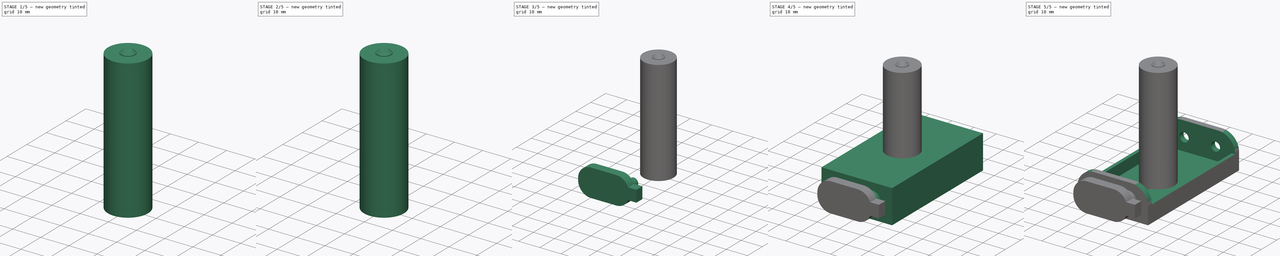
[diagram: build sequence overview — one tinted view per stage of 5, left to right]
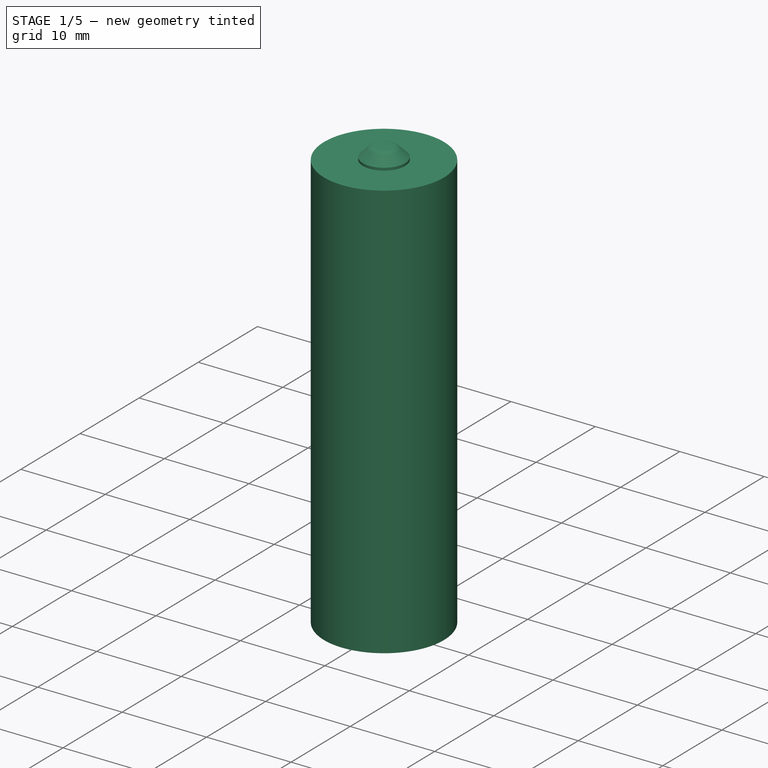
[diagram: stage 1 of 5 — iso view after this stage's code; geometry added in this stage tinted green]
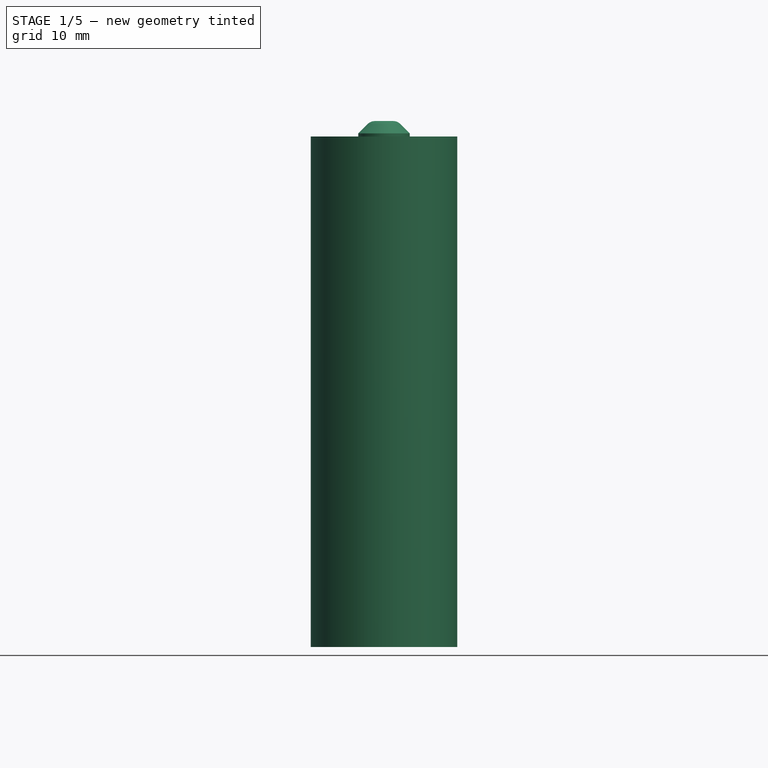
[diagram: stage 1 of 5 — front view after this stage's code; geometry added in this stage tinted green]
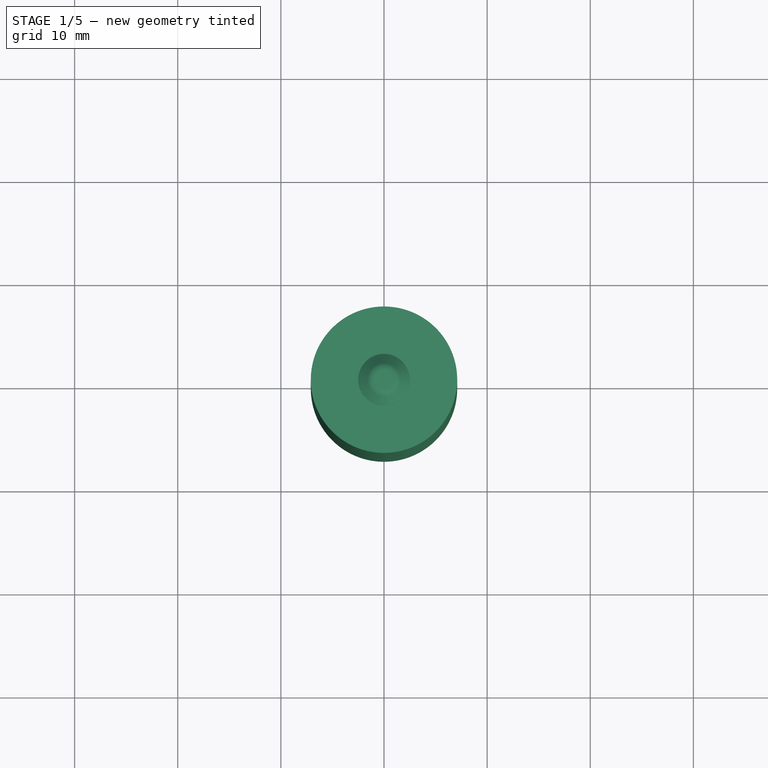
[diagram: stage 1 of 5 — top view after this stage's code; geometry added in this stage tinted green]
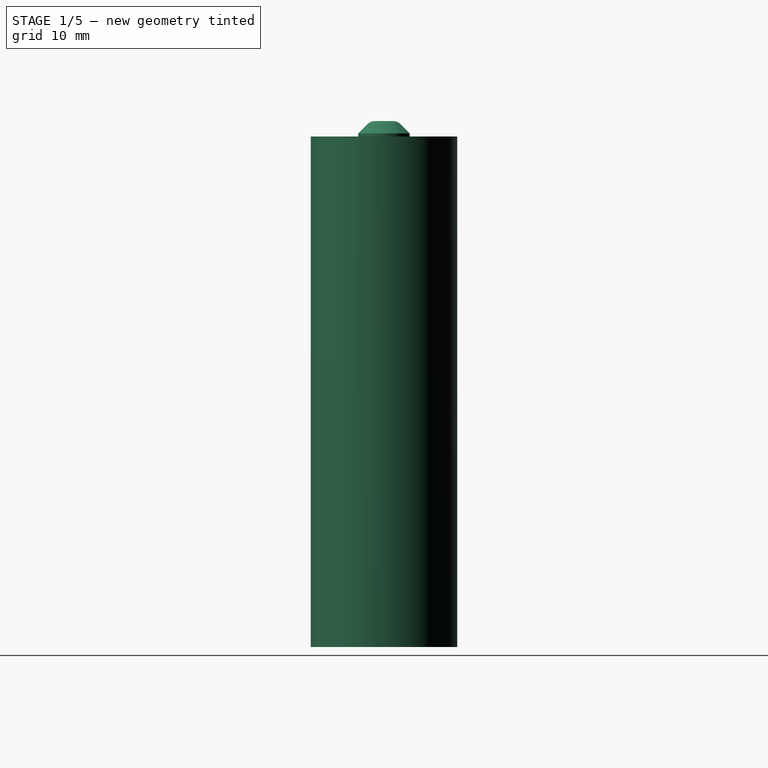
[diagram: stage 1 of 5 — right view after this stage's code; geometry added in this stage tinted green]
FCSTD DOCUMENT  (FreeCAD 0.19R24276 (Git))
Label: Std_2xAABatHolder
License: All rights reserved
LicenseURL: http://en.wikipedia.org/wiki/All_rights_reserved
objects: Sketcher::SketchObject×17, PartDesign::Pad×13, PartDesign::Body×8, PartDesign::Fillet×4, PartDesign::Pocket×4, PartDesign::Plane×4, App::Part×3, PartDesign::Chamfer×2
note: 75 computed .brp shape members not serialized (recipe doc carries the construction recipe); baked Part::Feature solids carry a one-line shape summary decoded from their .brp

FEATURE [PartDesign::Body] Body004  label="MainBody"
  Group = -> [Sketch012,Pad007,Sketch011,Pad008,Chamfer,Fillet002]
  Origin = -> Origin006
  Tip = -> Fillet002
FEATURE [App::Part] Part001  label="LiPo14500 1"
  Group = -> [Body004,Body005]
  Origin = -> Origin005
  Placement = pos=(-7.5,25,8) rot=(1,0,0;1.5708rad)
FEATURE [Sketcher::SketchObject] Sketch015
  FullyConstrained = true
  MapMode = 5
  Support = -> [XY_Plane009]
  sketch-geometry (2):
    g0: Circle CenterX=0 CenterY=0 CenterZ=0 NormalX=0 NormalY=0 NormalZ=1 AngleXU=0 Radius=7
    g1: Circle CenterX=0 CenterY=0 CenterZ=0 NormalX=0 NormalY=0 NormalZ=1 AngleXU=0 Radius=7.1
  constraints (4):
    c: Coincident(g0,g-1)
    c: Coincident(g1,g0)
    c: Diameter(g1) = 14.2
    c: Diameter(g0) = 14
FEATURE [PartDesign::Pad] Pad010
  Direction = (1,1,1)
  Length = 49.5
  Length2 = 100
  Profile = -> Sketch015
  Type = 0
FEATURE [Sketcher::SketchObject] Sketch016
  FullyConstrained = true
  MapMode = 5
  Support = -> [XY_Plane008]
  sketch-geometry (1):
    g0: Circle CenterX=0 CenterY=0 CenterZ=0 NormalX=0 NormalY=0 NormalZ=1 AngleXU=0 Radius=7
  constraints (2):
    c: Coincident(g0,g-1)
    c: Diameter(g0) = 14
FEATURE [PartDesign::Pad] Pad011
  Direction = (1,1,1)
  Length = 49.5
  Length2 = 100
  Profile = -> Sketch016
  Type = 0
FEATURE [Sketcher::SketchObject] Sketch014
  FullyConstrained = true
  MapMode = 5
  Placement = pos=(0,0,49.5) rot=(0,0,1;0rad)
  Support = -> [Pad011]
  sketch-geometry (1):
    g0: Circle CenterX=0 CenterY=0 CenterZ=0 NormalX=0 NormalY=0 NormalZ=1 AngleXU=0 Radius=2.5
  constraints (2):
    c: Coincident(g0,g-1)
    c: Diameter(g0) = 5
FEATURE [PartDesign::Pad] Pad012
  BaseFeature = -> Pad011
  Direction = (1,1,1)
  Length = 1.5
  Length2 = 100
  Profile = -> Sketch014
  Type = 0
FEATURE [PartDesign::Chamfer] Chamfer001
  Angle = 45
  Base = -> Pad012 [Edge6]
  BaseFeature = -> Pad012
  ChamferType = 0
  FlipDirection = false
  Size = 1.2
  Size2 = 1
  SupportTransform = false
FEATURE [PartDesign::Body] Body007  label="Case002"
  Group = -> [Sketch015,Pad010]
  Origin = -> Origin010
  Tip = -> Pad010
FEATURE [PartDesign::Fillet] Fillet003
  Base = -> Chamfer001 [Edge5]
  BaseFeature = -> Chamfer001
  Radius = 1
  SupportTransform = false
FEATURE [PartDesign::Body] Body006  label="MainBody001"
  Group = -> [Sketch016,Pad011,Sketch014,Pad012,Chamfer001,Fillet003]
  Origin = -> Origin008
  Tip = -> Fillet003
FEATURE [App::Part] Part002  label="LiPo14500 2"
  Group = -> [Body006,Body007]
  Origin = -> Origin009
  Placement = pos=(7.5,-25,8) rot=(1,0,0;4.71239rad)
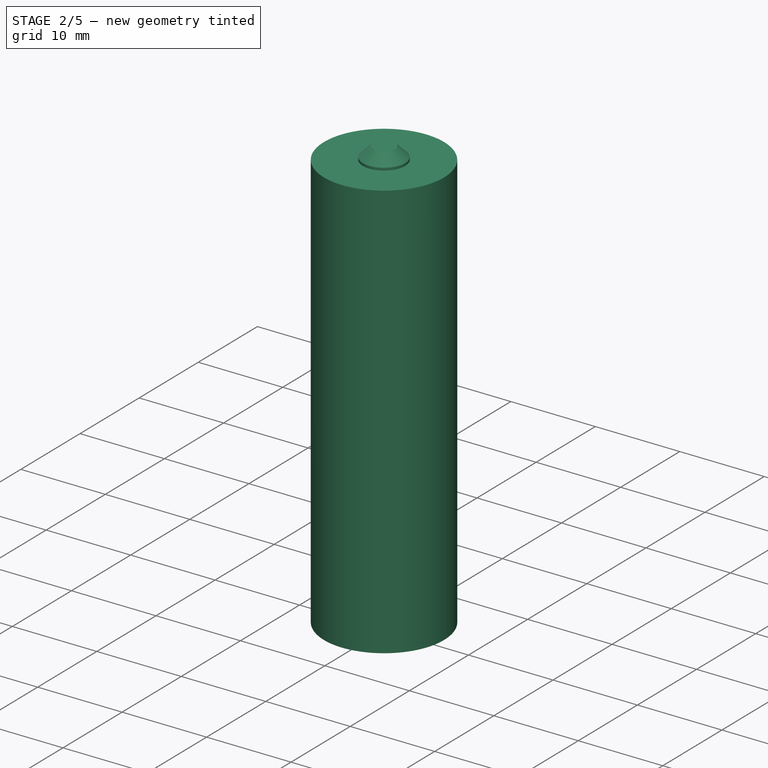
[diagram: stage 2 of 5 — iso view after this stage's code; geometry added in this stage tinted green]
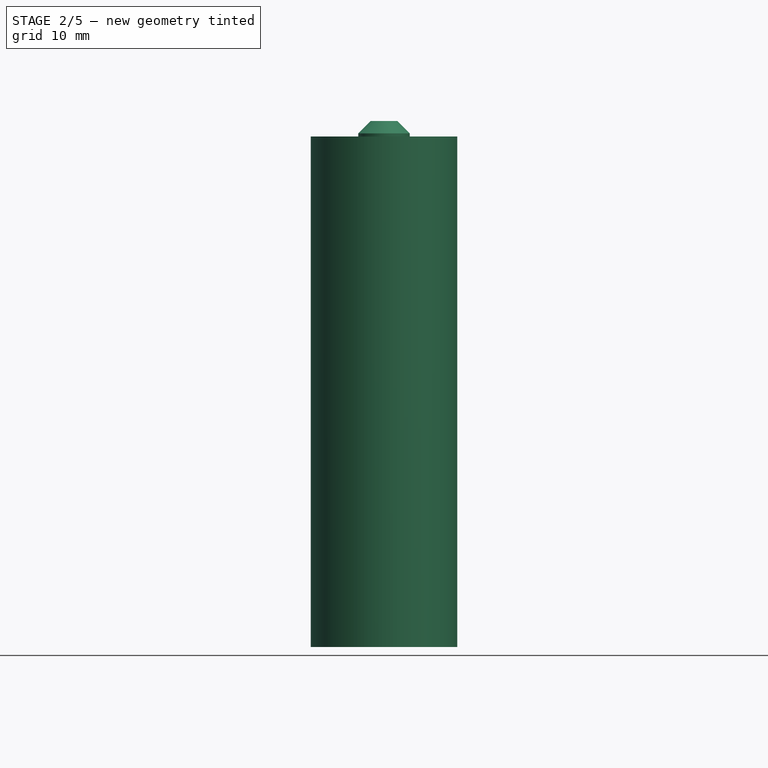
[diagram: stage 2 of 5 — front view after this stage's code; geometry added in this stage tinted green]
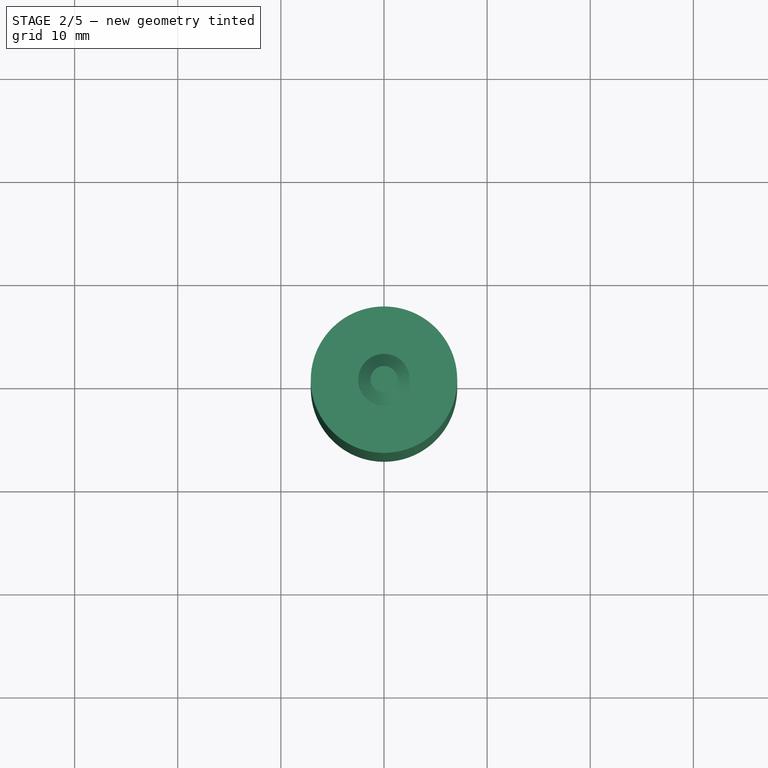
[diagram: stage 2 of 5 — top view after this stage's code; geometry added in this stage tinted green]
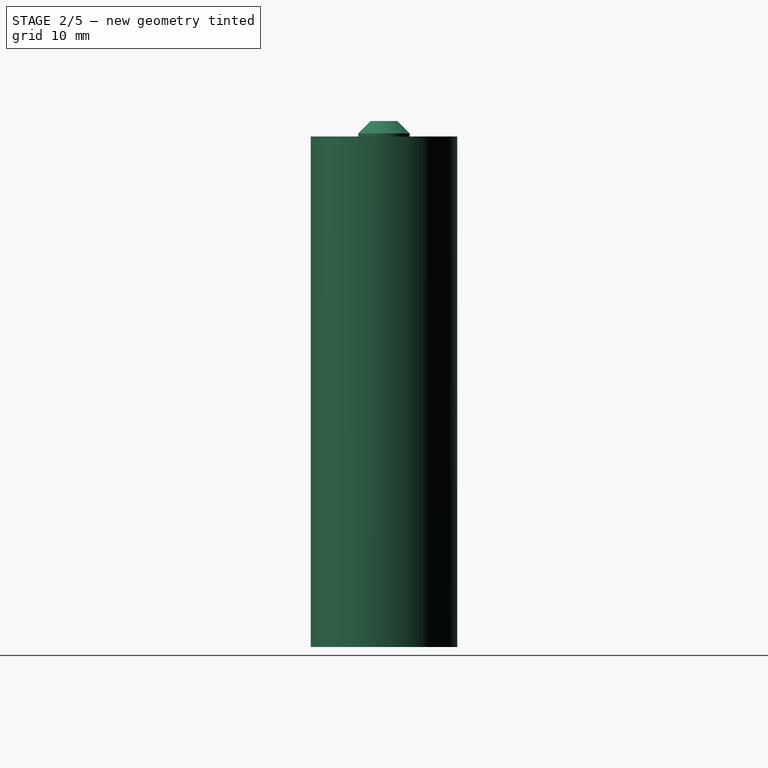
[diagram: stage 2 of 5 — right view after this stage's code; geometry added in this stage tinted green]
FEATURE [PartDesign::Body] Body003  label="WireConnector9V"
  Group = -> [DatumPlane003,Sketch009,Pad005,Fillet001,Sketch010,Pad006]
  Origin = -> Origin004
  Tip = -> Pad006
FEATURE [App::Part] Part  label="AABatHolder"
  Group = -> [Body,Body001,Body002,Body003]
  Origin = -> Origin
FEATURE [Sketcher::SketchObject] Sketch012
  FullyConstrained = true
  MapMode = 5
  Support = -> [XY_Plane006]
  sketch-geometry (1):
    g0: Circle CenterX=0 CenterY=0 CenterZ=0 NormalX=0 NormalY=0 NormalZ=1 AngleXU=0 Radius=7
  constraints (2):
    c: Coincident(g0,g-1)
    c: Diameter(g0) = 14
FEATURE [PartDesign::Pad] Pad007
  Direction = (1,1,1)
  Length = 49.5
  Length2 = 100
  Profile = -> Sketch012
  Type = 0
FEATURE [Sketcher::SketchObject] Sketch011
  FullyConstrained = true
  MapMode = 5
  Placement = pos=(0,0,49.5) rot=(0,0,1;0rad)
  Support = -> [Pad007]
  sketch-geometry (1):
    g0: Circle CenterX=0 CenterY=0 CenterZ=0 NormalX=0 NormalY=0 NormalZ=1 AngleXU=0 Radius=2.5
  constraints (2):
    c: Coincident(g0,g-1)
    c: Diameter(g0) = 5
FEATURE [PartDesign::Pad] Pad008
  BaseFeature = -> Pad007
  Direction = (1,1,1)
  Length = 1.5
  Length2 = 100
  Profile = -> Sketch011
  Type = 0
FEATURE [Sketcher::SketchObject] Sketch013
  FullyConstrained = true
  MapMode = 5
  Support = -> [XY_Plane007]
  sketch-geometry (2):
    g0: Circle CenterX=0 CenterY=0 CenterZ=0 NormalX=0 NormalY=0 NormalZ=1 AngleXU=0 Radius=7
    g1: Circle CenterX=0 CenterY=0 CenterZ=0 NormalX=0 NormalY=0 NormalZ=1 AngleXU=0 Radius=7.1
  constraints (4):
    c: Coincident(g0,g-1)
    c: Coincident(g1,g0)
    c: Diameter(g1) = 14.2
    c: Diameter(g0) = 14
FEATURE [PartDesign::Pad] Pad009
  Direction = (1,1,1)
  Length = 49.5
  Length2 = 100
  Profile = -> Sketch013
  Type = 0
FEATURE [PartDesign::Body] Body005  label="Case001"
  Group = -> [Sketch013,Pad009]
  Origin = -> Origin007
  Tip = -> Pad009
FEATURE [PartDesign::Chamfer] Chamfer
  Angle = 45
  Base = -> Pad008 [Edge6]
  BaseFeature = -> Pad008
  ChamferType = 0
  FlipDirection = false
  Size = 1.2
  Size2 = 1
  SupportTransform = false
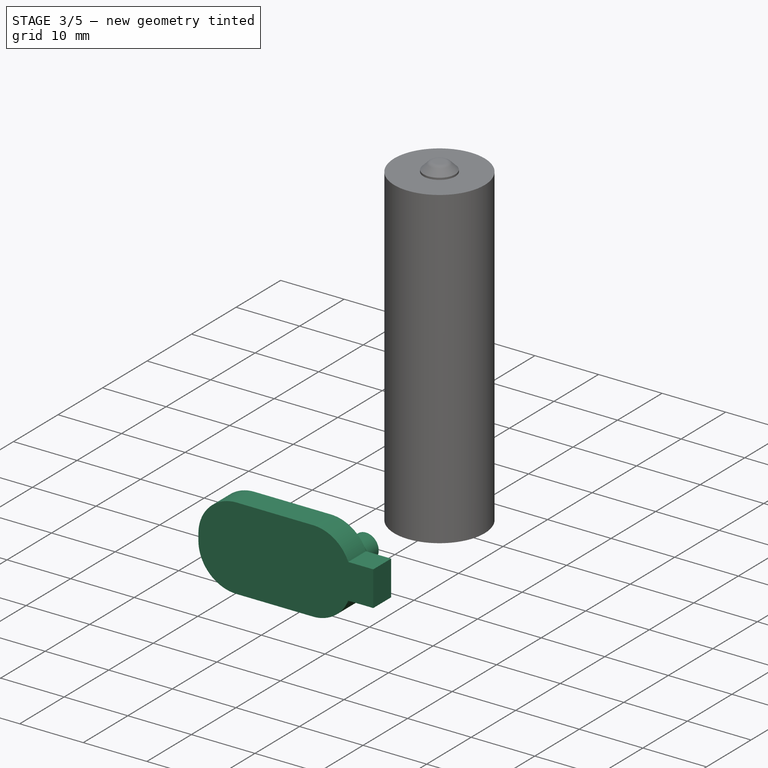
[diagram: stage 3 of 5 — iso view after this stage's code; geometry added in this stage tinted green]
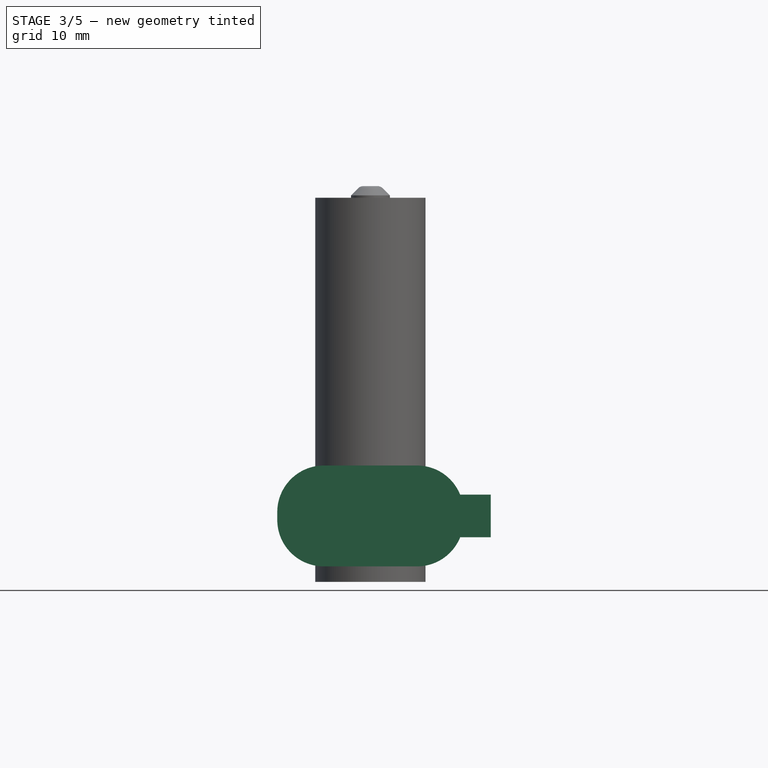
[diagram: stage 3 of 5 — front view after this stage's code; geometry added in this stage tinted green]
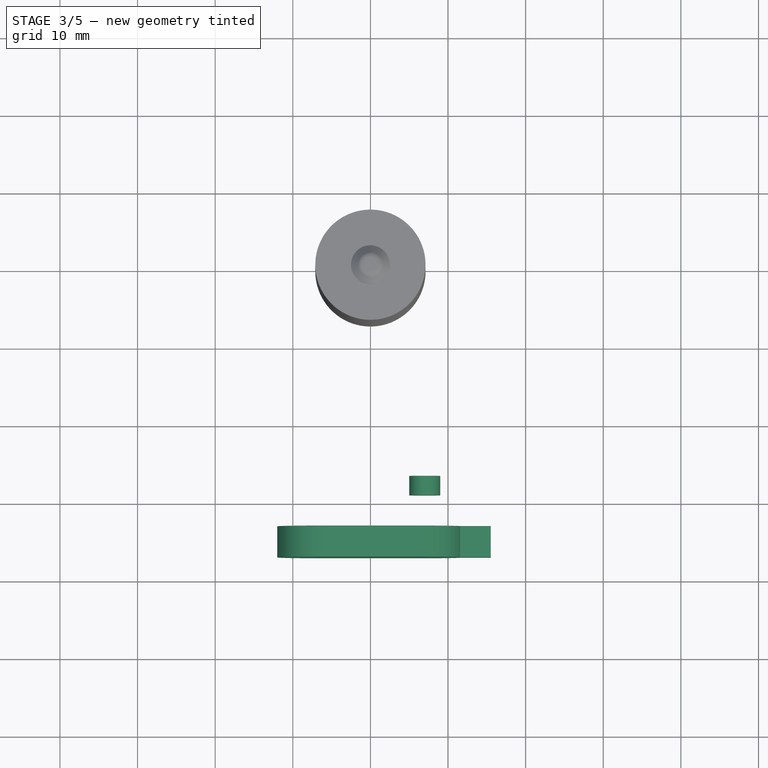
[diagram: stage 3 of 5 — top view after this stage's code; geometry added in this stage tinted green]
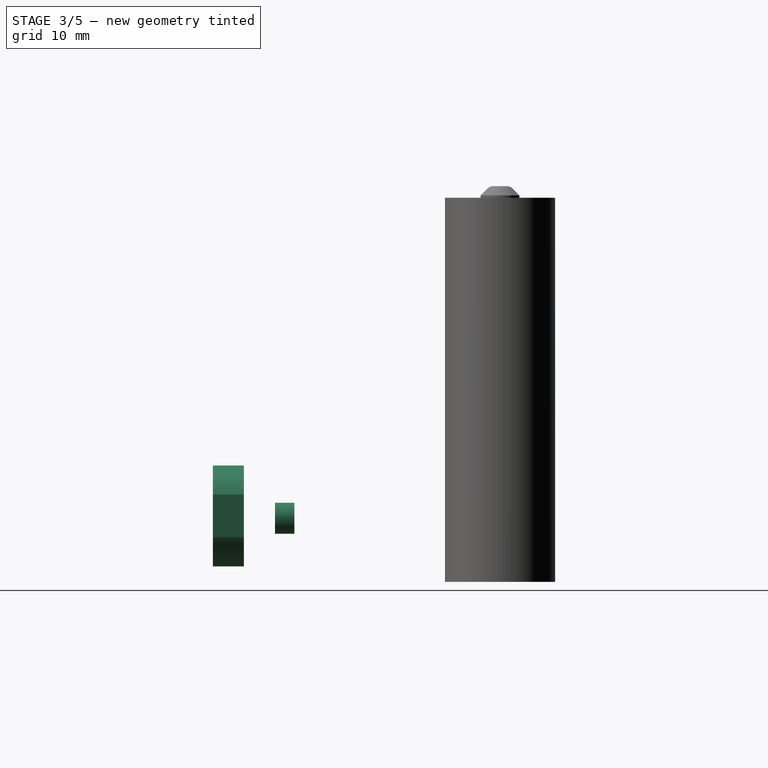
[diagram: stage 3 of 5 — right view after this stage's code; geometry added in this stage tinted green]
FEATURE [PartDesign::Body] Body001  label="Connector9V_1"
  Group = -> [DatumPlane001,Sketch005,Pad001,Sketch006,Pad002]
  Origin = -> Origin002
  Tip = -> Pad002
FEATURE [PartDesign::Plane] DatumPlane002
  AttachmentOffset = pos=(0,0,29) rot=(0,0,1;0rad)
  Length = 60
  MapMode = 5
  Placement = pos=(0,-29,-6.4e-15) rot=(1,0,0;1.5708rad)
  ResizeMode = 0
  Support = -> [XZ_Plane003]
  Width = 60
FEATURE [Sketcher::SketchObject] Sketch007
  FullyConstrained = true
  MapMode = 5
  Placement = pos=(0,-29,-6.4e-15) rot=(1,0,0;1.5708rad)
  Support = -> [DatumPlane002]
  sketch-geometry (3):
    g0: LineSegment StartX=0 StartY=0 StartZ=0 EndX=0 EndY=8.2 EndZ=0
    g1: LineSegment StartX=-7 StartY=8.2 StartZ=0 EndX=7 EndY=8.2 EndZ=0
    g2: Circle CenterX=7 CenterY=8.2 CenterZ=0 NormalX=0 NormalY=0 NormalZ=1 AngleXU=0 Radius=2
  constraints (8):
    c: Coincident(g0,g-1)
    c: PointOnObject(g0,g-2)
    c: Horizontal(g1)
    c: Symmetric(g1,g1,g0)
    c: Distance(g0) = 8.2
    c: Distance(g1) = 14
    c: Coincident(g2,g1)
    c: Diameter(g2) = 4
FEATURE [PartDesign::Pad] Pad003
  Direction = (1,1,1)
  Length = 2.5
  Length2 = 100
  Placement = pos=(0,-29,6e-15) rot=(1,0,0;1.5708rad)
  Profile = -> Sketch007
  Reversed = true
  Type = 0
FEATURE [PartDesign::Body] Body002  label="Connector9V_2"
  Group = -> [DatumPlane002,Sketch007,Pad003,Sketch008,Pad004]
  Origin = -> Origin003
  Tip = -> Pad004
FEATURE [PartDesign::Plane] DatumPlane003
  AttachmentOffset = pos=(0,0,33) rot=(0,0,1;0rad)
  Length = 60
  MapMode = 5
  Placement = pos=(0,-33,-7.3e-15) rot=(1,0,0;1.5708rad)
  ResizeMode = 0
  Support = -> [XZ_Plane004]
  Width = 60
FEATURE [Sketcher::SketchObject] Sketch009
  FullyConstrained = true
  MapMode = 5
  Placement = pos=(0,-33,-7.3e-15) rot=(1,0,0;1.5708rad)
  Support = -> [DatumPlane003]
  sketch-geometry (5):
    g0: LineSegment StartX=-12 StartY=15 StartZ=0 EndX=12 EndY=15 EndZ=0
    g1: LineSegment StartX=12 StartY=15 StartZ=0 EndX=12 EndY=2 EndZ=0
    g2: LineSegment StartX=12 StartY=2 StartZ=0 EndX=-12 EndY=2 EndZ=0
    g3: LineSegment StartX=-12 StartY=2 StartZ=0 EndX=-12 EndY=15 EndZ=0
    g4: LineSegment StartX=0 StartY=0 StartZ=0 EndX=0 EndY=2 EndZ=0
  constraints (14):
    c: Coincident(g0,g1)
    c: Coincident(g1,g2)
    c: Coincident(g2,g3)
    c: Coincident(g3,g0)
    c: Horizontal(g0)
    c: Horizontal(g2)
    c: Vertical(g1)
    c: Vertical(g3)
    c: Coincident(g4,g-1)
    c: PointOnObject(g4,g-2)
    c: Symmetric(g2,g1,g4)
    c: Distance(g0) = 24
    c: Distance(g3) = 13
    c: Distance(g4) = 2
FEATURE [PartDesign::Pad] Pad005
  Direction = (1,1,1)
  Length = 4
  Length2 = 100
  Placement = pos=(0,-33,7e-15) rot=(1,0,0;1.5708rad)
  Profile = -> Sketch009
  Type = 0
FEATURE [PartDesign::Fillet] Fillet001
  Base = -> Pad005 [Edge1,Edge2,Edge8,Edge5]
  BaseFeature = -> Pad005
  Placement = pos=(0,-33,7e-15) rot=(1,0,0;1.5708rad)
  Radius = 6
  SupportTransform = false
FEATURE [Sketcher::SketchObject] Sketch010
  FullyConstrained = true
  MapMode = 5
  Placement = pos=(0,-33,-7.3e-15) rot=(1,0,0;1.5708rad)
  Support = -> [DatumPlane003]
  sketch-geometry (5):
    g0: LineSegment StartX=10 StartY=11.25 StartZ=0 EndX=15.5 EndY=11.25 EndZ=0
    g1: LineSegment StartX=15.5 StartY=11.25 StartZ=0 EndX=15.5 EndY=5.75 EndZ=0
    g2: LineSegment StartX=15.5 StartY=5.75 StartZ=0 EndX=10 EndY=5.75 EndZ=0
    g3: LineSegment StartX=10 StartY=5.75 StartZ=0 EndX=10 EndY=11.25 EndZ=0
    g4: LineSegment StartX=0 StartY=8.5 StartZ=0 EndX=10 EndY=8.5 EndZ=0
  constraints (15):
    c: Coincident(g0,g1)
    c: Coincident(g1,g2)
    c: Coincident(g2,g3)
    c: Coincident(g3,g0)
    c: Horizontal(g0)
    c: Horizontal(g2)
    c: Vertical(g1)
    c: Vertical(g3)
    c: Distance(g1) = 5.5
    c: Distance(g0) = 5.5
    c: DistanceX(g-1,g1) = 15.5
    c: PointOnObject(g4,g-2)
    c: Horizontal(g4)
    c: Symmetric(g0,g2,g4)
    c: DistanceY(g-1,g4) = 8.5
FEATURE [PartDesign::Pad] Pad006
  BaseFeature = -> Fillet001
  Direction = (1,1,1)
  Length = 4
  Length2 = 100
  Placement = pos=(0,-33,7e-15) rot=(1,0,0;1.5708rad)
  Profile = -> Sketch010
  Type = 0
FEATURE [PartDesign::Fillet] Fillet002
  Base = -> Chamfer [Edge5]
  BaseFeature = -> Chamfer
  Radius = 1
  SupportTransform = false
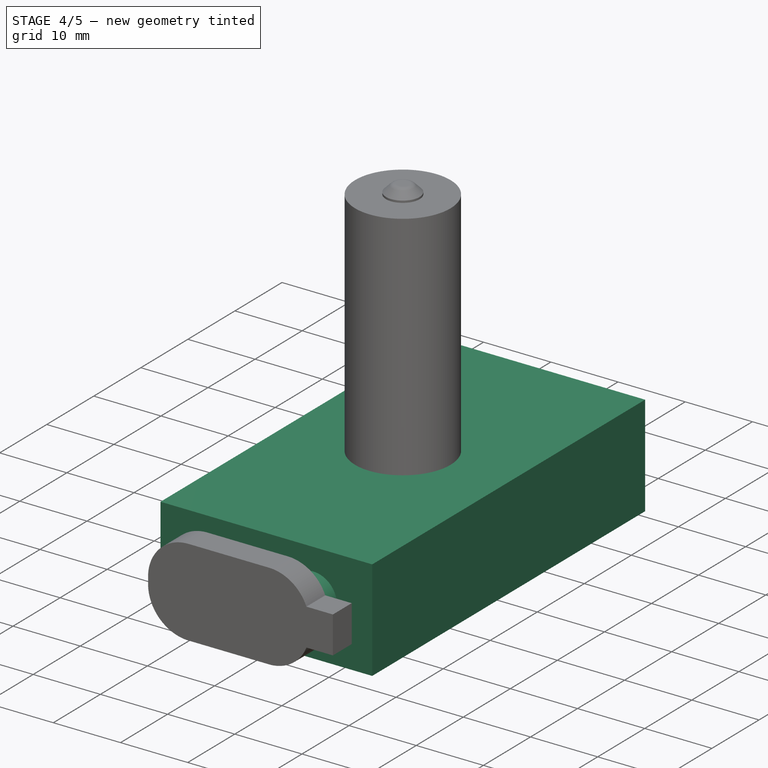
[diagram: stage 4 of 5 — iso view after this stage's code; geometry added in this stage tinted green]
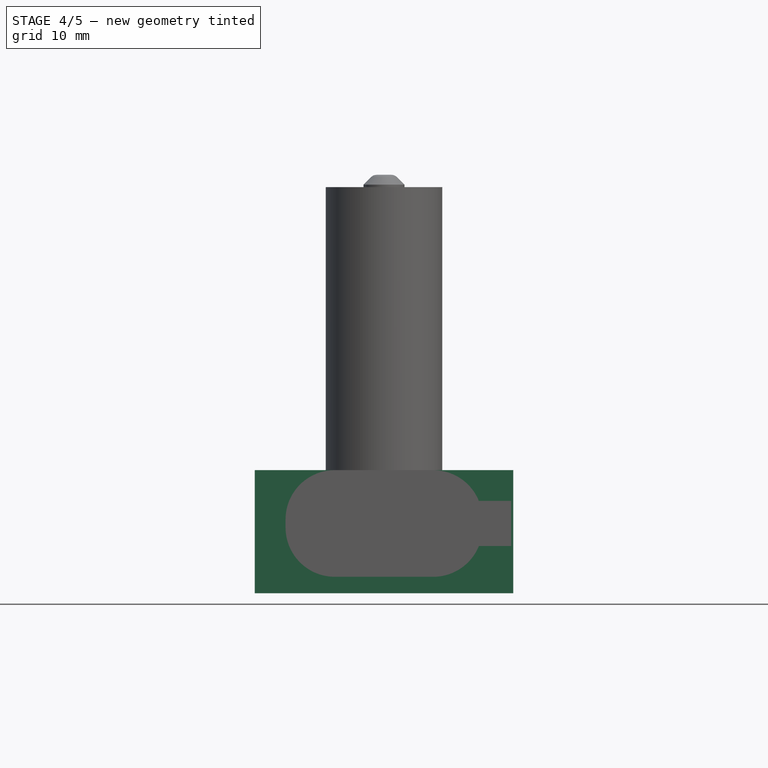
[diagram: stage 4 of 5 — front view after this stage's code; geometry added in this stage tinted green]
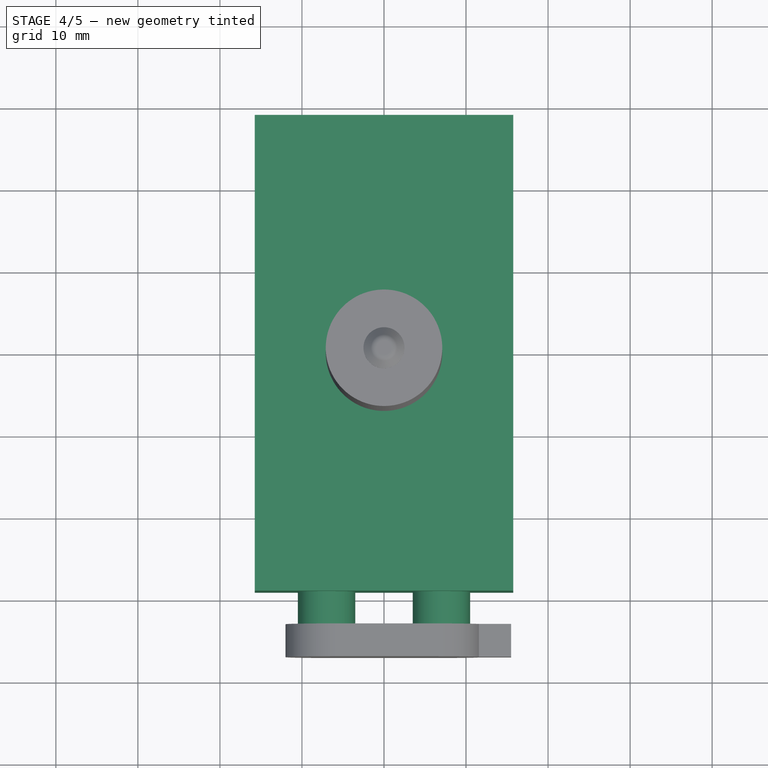
[diagram: stage 4 of 5 — top view after this stage's code; geometry added in this stage tinted green]
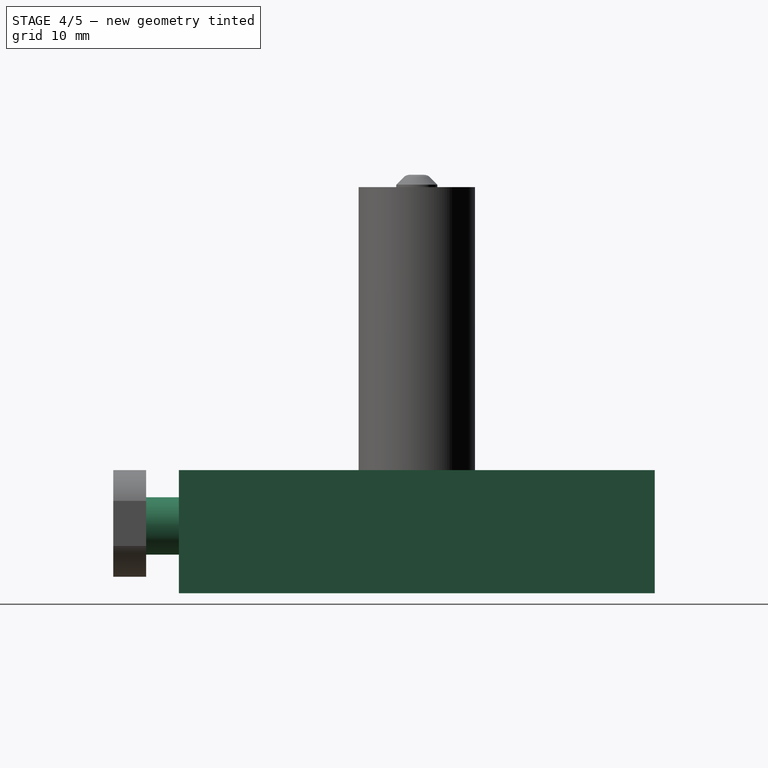
[diagram: stage 4 of 5 — right view after this stage's code; geometry added in this stage tinted green]
FEATURE [Sketcher::SketchObject] Sketch
  FullyConstrained = true
  MapMode = 5
  Support = -> [XY_Plane001]
  sketch-geometry (6):
    g0: LineSegment StartX=-15.75 StartY=29 StartZ=0 EndX=15.75 EndY=29 EndZ=0
    g1: LineSegment StartX=15.75 StartY=29 StartZ=0 EndX=15.75 EndY=-29 EndZ=0
    g2: LineSegment StartX=15.75 StartY=-29 StartZ=0 EndX=-15.75 EndY=-29 EndZ=0
    g3: LineSegment StartX=-15.75 StartY=-29 StartZ=0 EndX=-15.75 EndY=29 EndZ=0
    g4: LineSegment StartX=0 StartY=0 StartZ=0 EndX=0 EndY=29 EndZ=0
    g5: LineSegment StartX=0 StartY=0 StartZ=0 EndX=15.75 EndY=0 EndZ=0
  constraints (16):
    c: Coincident(g0,g1)
    c: Coincident(g1,g2)
    c: Coincident(g2,g3)
    c: Coincident(g3,g0)
    c: Horizontal(g0)
    c: Horizontal(g2)
    c: Vertical(g1)
    c: Vertical(g3)
    c: Coincident(g4,g-1)
    c: PointOnObject(g4,g-2)
    c: Coincident(g5,g-1)
    c: PointOnObject(g5,g-1)
    c: Symmetric(g0,g0,g4)
    c: Symmetric(g0,g1,g5)
    c: Distance(g1) = 58
    c: Distance(g0) = 31.5
FEATURE [PartDesign::Pad] Pad
  Direction = (1,1,1)
  Length = 15
  Length2 = 100
  Profile = -> Sketch
  Type = 0
FEATURE [PartDesign::Body] Body  label="Case"
  Group = -> [Sketch,Pad,Fillet,Sketch001,Pocket,DatumPlane,Sketch002,Pocket001,Sketch003,Pocket002,Sketch004,Pocket003]
  Origin = -> Origin001
  Tip = -> Pocket003
FEATURE [PartDesign::Plane] DatumPlane001
  AttachmentOffset = pos=(0,0,29) rot=(0,0,1;0rad)
  Length = 60
  MapMode = 5
  Placement = pos=(0,-29,-6.4e-15) rot=(1,0,0;1.5708rad)
  ResizeMode = 0
  Support = -> [XZ_Plane002]
  Width = 60
FEATURE [Sketcher::SketchObject] Sketch005
  FullyConstrained = false
  MapMode = 5
  Placement = pos=(0,-29,-6.4e-15) rot=(1,0,0;1.5708rad)
  Support = -> [DatumPlane001]
  sketch-geometry (3):
    g0: LineSegment StartX=0 StartY=0 StartZ=0 EndX=0 EndY=8.2 EndZ=0
    g1: LineSegment StartX=-7 StartY=8.2 StartZ=0 EndX=7 EndY=8.2 EndZ=0
    g2: Circle CenterX=-7 CenterY=8.2 CenterZ=0 NormalX=0 NormalY=0 NormalZ=1 AngleXU=0 Radius=2
  constraints (7):
    c: Coincident(g0,g-1)
    c: Vertical(g0)
    c: Horizontal(g1)
    c: Symmetric(g1,g1,g0)
    c: Distance(g1) = 14
    c: Distance(g0) = 8.2
    c: Coincident(g2,g1)
FEATURE [PartDesign::Pad] Pad001
  Direction = (1,1,1)
  Length = 2.5
  Length2 = 100
  Placement = pos=(0,-29,6e-15) rot=(1,0,0;1.5708rad)
  Profile = -> Sketch005
  Reversed = true
  Type = 0
FEATURE [Sketcher::SketchObject] Sketch006
  FullyConstrained = true
  MapMode = 5
  Placement = pos=(0,-29,-6.4e-15) rot=(1,0,0;1.5708rad)
  Support = -> [DatumPlane001]
  sketch-geometry (3):
    g0: LineSegment StartX=0 StartY=0 StartZ=0 EndX=0 EndY=8.2 EndZ=0
    g1: LineSegment StartX=-7 StartY=8.2 StartZ=0 EndX=7 EndY=8.2 EndZ=0
    g2: Circle CenterX=-7 CenterY=8.2 CenterZ=0 NormalX=0 NormalY=0 NormalZ=1 AngleXU=0 Radius=3.5
  constraints (8):
    c: Coincident(g0,g-1)
    c: Vertical(g0)
    c: Horizontal(g1)
    c: Symmetric(g1,g1,g0)
    c: Distance(g1) = 14
    c: Distance(g0) = 8.2
    c: Coincident(g2,g1)
    c: Diameter(g2) = 7
FEATURE [PartDesign::Pad] Pad002
  BaseFeature = -> Pad001
  Direction = (1,1,1)
  Length = 4
  Length2 = 100
  Placement = pos=(0,-29,6e-15) rot=(1,0,0;1.5708rad)
  Profile = -> Sketch006
  Type = 0
FEATURE [Sketcher::SketchObject] Sketch008
  FullyConstrained = true
  MapMode = 5
  Placement = pos=(0,-29,-6.4e-15) rot=(1,0,0;1.5708rad)
  Support = -> [DatumPlane002]
  sketch-geometry (3):
    g0: LineSegment StartX=0 StartY=0 StartZ=0 EndX=0 EndY=8.2 EndZ=0
    g1: LineSegment StartX=-7 StartY=8.2 StartZ=0 EndX=7 EndY=8.2 EndZ=0
    g2: Circle CenterX=7 CenterY=8.2 CenterZ=0 NormalX=0 NormalY=0 NormalZ=1 AngleXU=0 Radius=3.5
  constraints (8):
    c: Coincident(g0,g-1)
    c: PointOnObject(g0,g-2)
    c: Horizontal(g1)
    c: Symmetric(g1,g1,g0)
    c: Distance(g0) = 8.2
    c: Distance(g1) = 14
    c: Coincident(g2,g1)
    c: Diameter(g2) = 7
FEATURE [PartDesign::Pad] Pad004
  BaseFeature = -> Pad003
  Direction = (1,1,1)
  Length = 4
  Length2 = 100
  Placement = pos=(0,-29,6e-15) rot=(1,0,0;1.5708rad)
  Profile = -> Sketch008
  Type = 0
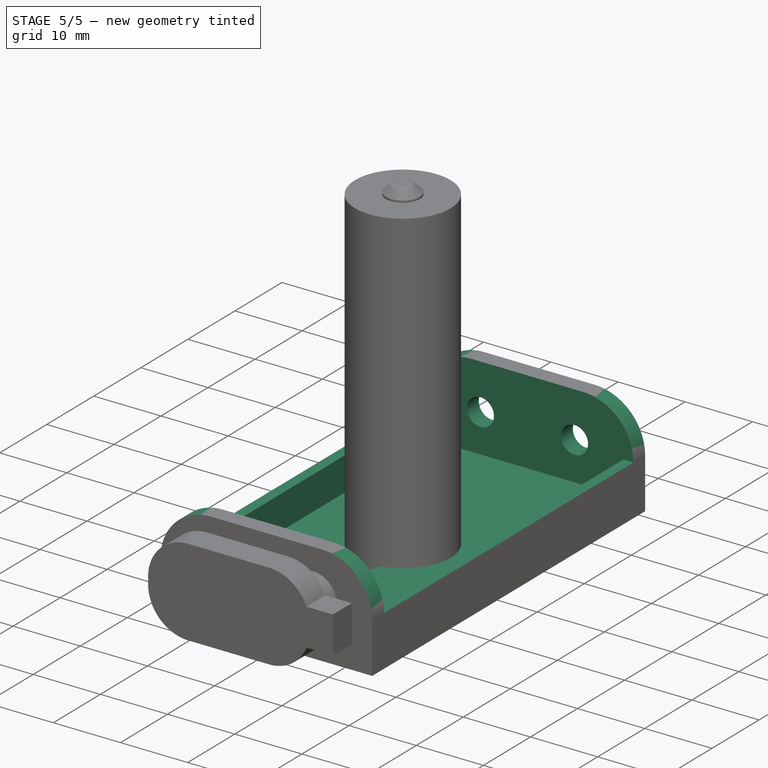
[diagram: stage 5 of 5 — iso view after this stage's code; geometry added in this stage tinted green]
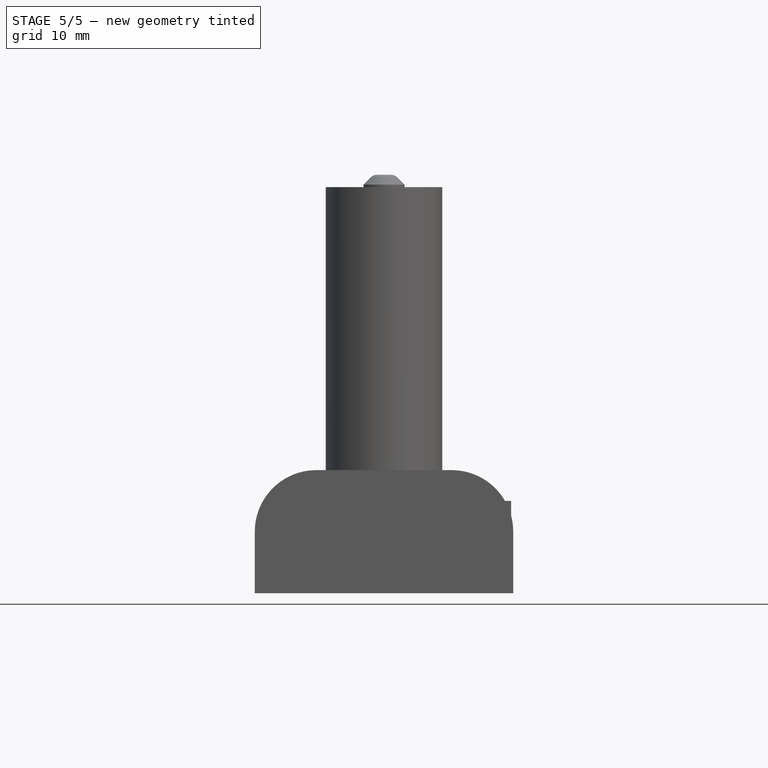
[diagram: stage 5 of 5 — front view after this stage's code; geometry added in this stage tinted green]
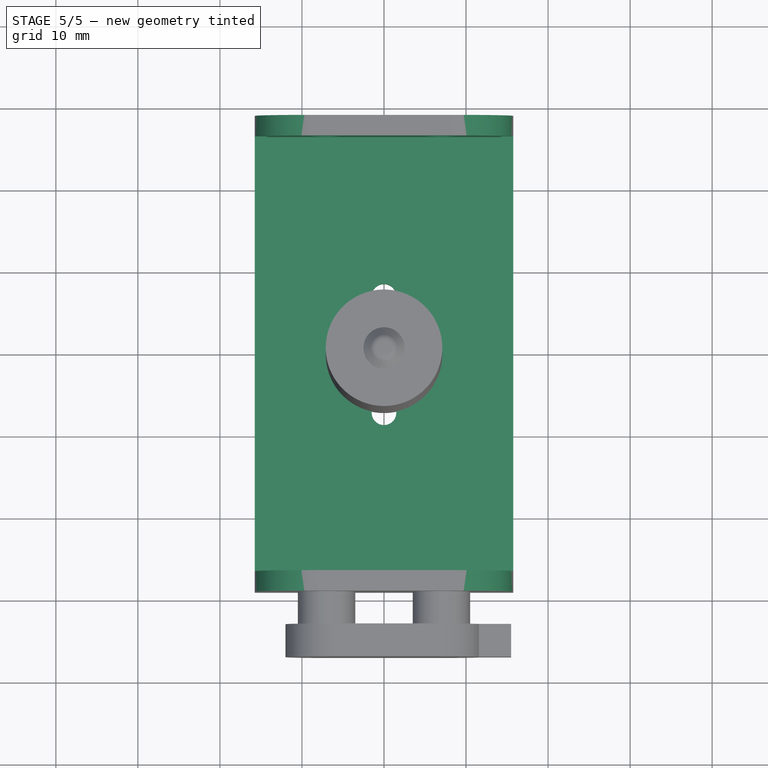
[diagram: stage 5 of 5 — top view after this stage's code; geometry added in this stage tinted green]
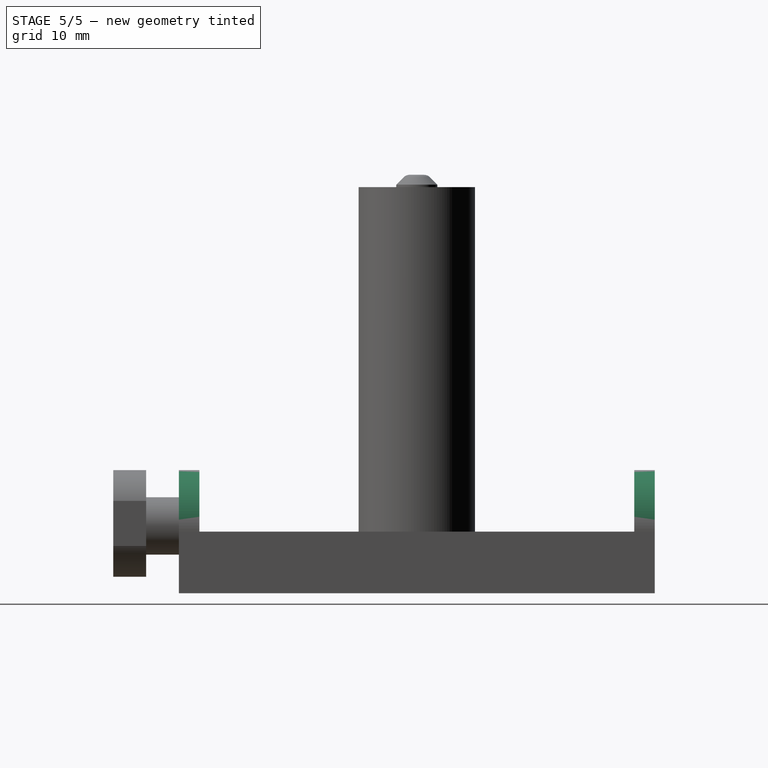
[diagram: stage 5 of 5 — right view after this stage's code; geometry added in this stage tinted green]
FEATURE [PartDesign::Fillet] Fillet
  Base = -> Pad [Edge7,Edge12]
  BaseFeature = -> Pad
  Radius = 7.5
  SupportTransform = false
FEATURE [Sketcher::SketchObject] Sketch001
  FullyConstrained = true
  MapMode = 5
  Placement = pos=(0,0,0) rot=(0.57735,0.57735,0.57735;2.0944rad)
  Support = -> [YZ_Plane001]
  sketch-geometry (5):
    g0: LineSegment StartX=0 StartY=0 StartZ=0 EndX=0 EndY=7.5 EndZ=0
    g1: LineSegment StartX=-26.5 StartY=22.5 StartZ=0 EndX=26.5 EndY=22.5 EndZ=0
    g2: LineSegment StartX=26.5 StartY=22.5 StartZ=0 EndX=26.5 EndY=7.5 EndZ=0
    g3: LineSegment StartX=26.5 StartY=7.5 StartZ=0 EndX=-26.5 EndY=7.5 EndZ=0
    g4: LineSegment StartX=-26.5 StartY=7.5 StartZ=0 EndX=-26.5 EndY=22.5 EndZ=0
  constraints (14):
    c: Coincident(g0,g-1)
    c: PointOnObject(g0,g-2)
    c: Coincident(g1,g2)
    c: Coincident(g2,g3)
    c: Coincident(g3,g4)
    c: Coincident(g4,g1)
    c: Horizontal(g1)
    c: Horizontal(g3)
    c: Vertical(g2)
    c: Vertical(g4)
    c: Symmetric(g3,g2,g0)
    c: Distance(g0) = 7.5
    c: Distance(g2) = 15
    c: Distance(g1) = 53
FEATURE [PartDesign::Pocket] Pocket
  BaseFeature = -> Fillet
  Length = 5
  Length2 = 100
  Midplane = true
  Profile = -> Sketch001
  Type = 1
FEATURE [PartDesign::Plane] DatumPlane
  AttachmentOffset = pos=(0,0,7.5) rot=(0,0,1;0rad)
  Length = 60
  MapMode = 5
  Placement = pos=(0,0,7.5) rot=(0,0,1;0rad)
  ResizeMode = 0
  Support = -> [XY_Plane001]
  Width = 60
FEATURE [Sketcher::SketchObject] Sketch002
  FullyConstrained = true
  MapMode = 5
  Placement = pos=(0,0,7.5) rot=(0,0,1;0rad)
  Support = -> [DatumPlane]
  sketch-geometry (6):
    g0: LineSegment StartX=-14.25 StartY=26.5 StartZ=0 EndX=14.25 EndY=26.5 EndZ=0
    g1: LineSegment StartX=14.25 StartY=26.5 StartZ=0 EndX=14.25 EndY=-26.5 EndZ=0
    g2: LineSegment StartX=14.25 StartY=-26.5 StartZ=0 EndX=-14.25 EndY=-26.5 EndZ=0
    g3: LineSegment StartX=-14.25 StartY=-26.5 StartZ=0 EndX=-14.25 EndY=26.5 EndZ=0
    g4: LineSegment StartX=0 StartY=0 StartZ=0 EndX=0 EndY=26.5 EndZ=0
    g5: LineSegment StartX=0 StartY=0 StartZ=0 EndX=14.25 EndY=-1e-16 EndZ=0
  constraints (16):
    c: Coincident(g0,g1)
    c: Coincident(g1,g2)
    c: Coincident(g2,g3)
    c: Coincident(g3,g0)
    c: Horizontal(g0)
    c: Horizontal(g2)
    c: Vertical(g1)
    c: Vertical(g3)
    c: Coincident(g4,g-1)
    c: PointOnObject(g4,g-2)
    c: Coincident(g5,g-1)
    c: PointOnObject(g5,g-1)
    c: Symmetric(g0,g0,g4)
    c: Symmetric(g0,g1,g5)
    c: DistanceX(g0,g0) = 28.5
    c: DistanceY(g1,g0) = 53
FEATURE [PartDesign::Pocket] Pocket001
  BaseFeature = -> Pocket
  Length = 5
  Length2 = 100
  Profile = -> Sketch002
  Type = 0
FEATURE [Sketcher::SketchObject] Sketch003
  FullyConstrained = true
  MapMode = 5
  Support = -> [XY_Plane001]
  sketch-geometry (5):
    g0: Circle CenterX=0 CenterY=7.1 CenterZ=0 NormalX=0 NormalY=0 NormalZ=1 AngleXU=0 Radius=1.5
    g1: Circle CenterX=0 CenterY=0 CenterZ=0 NormalX=0 NormalY=0 NormalZ=1 AngleXU=0 Radius=1.5
    g2: Circle CenterX=0 CenterY=-7.1 CenterZ=0 NormalX=0 NormalY=0 NormalZ=1 AngleXU=0 Radius=1.5
    g3: LineSegment StartX=0 StartY=0 StartZ=0 EndX=0 EndY=7.1 EndZ=0
    g4: LineSegment StartX=0 StartY=0 StartZ=0 EndX=0 EndY=-7.1 EndZ=0
  constraints (12):
    c: Coincident(g1,g-1)
    c: Coincident(g3,g1)
    c: Coincident(g3,g0)
    c: Vertical(g3)
    c: Coincident(g4,g1)
    c: Coincident(g4,g2)
    c: Vertical(g4)
    c: Equal(g3,g4)
    c: Equal(g1,g0)
    c: Equal(g1,g2)
    c: Diameter(g0) = 3
    c: Distance(g3) = 7.1
FEATURE [PartDesign::Pocket] Pocket002
  BaseFeature = -> Pocket001
  Length = 5
  Length2 = 100
  Profile = -> Sketch003
  Reversed = true
  Type = 1
FEATURE [Sketcher::SketchObject] Sketch004
  FullyConstrained = true
  MapMode = 5
  Placement = pos=(0,29,0) rot=(0,0.707107,0.707107;3.14159rad)
  Support = -> [Pocket002]
  sketch-geometry (4):
    g0: Circle CenterX=-7 CenterY=8.2 CenterZ=0 NormalX=0 NormalY=0 NormalZ=1 AngleXU=0 Radius=2
    g1: Circle CenterX=7 CenterY=8.2 CenterZ=0 NormalX=0 NormalY=0 NormalZ=1 AngleXU=0 Radius=2
    g2: LineSegment StartX=0 StartY=0 StartZ=0 EndX=0 EndY=8.2 EndZ=0
    g3: LineSegment StartX=-7 StartY=8.2 StartZ=0 EndX=7 EndY=8.2 EndZ=0
  constraints (10):
    c: Coincident(g2,g-1)
    c: Vertical(g2)
    c: Horizontal(g3)
    c: Symmetric(g3,g3,g2)
    c: Equal(g0,g1)
    c: Diameter(g0) = 4
    c: Coincident(g0,g3)
    c: Coincident(g1,g3)
    c: Distance(g3) = 14
    c: Distance(g2) = 8.2
FEATURE [PartDesign::Pocket] Pocket003
  BaseFeature = -> Pocket002
  Length = 5
  Length2 = 100
  Profile = -> Sketch004
  Type = 1
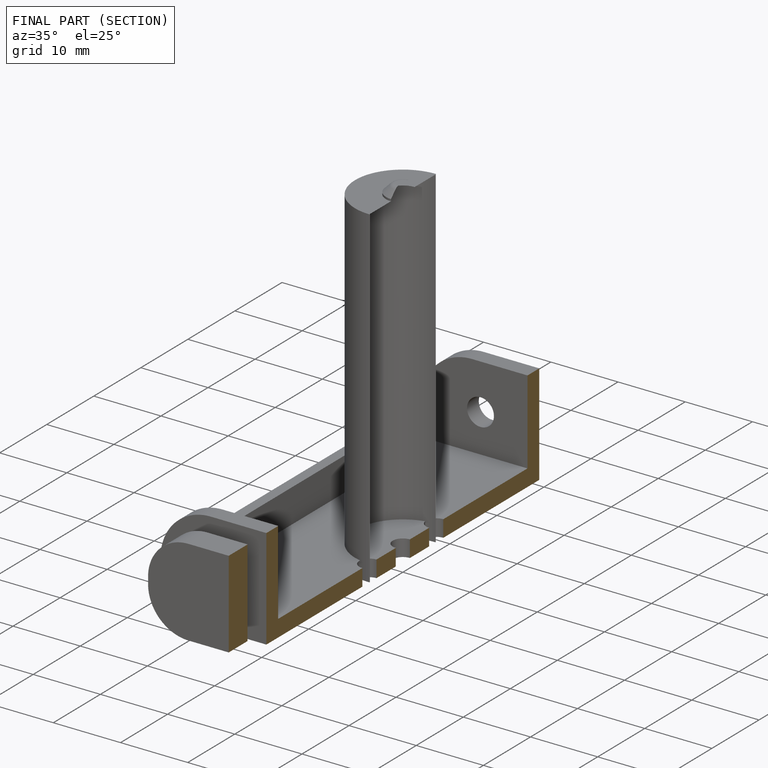
[diagram: finished part — half-section view (interior)]
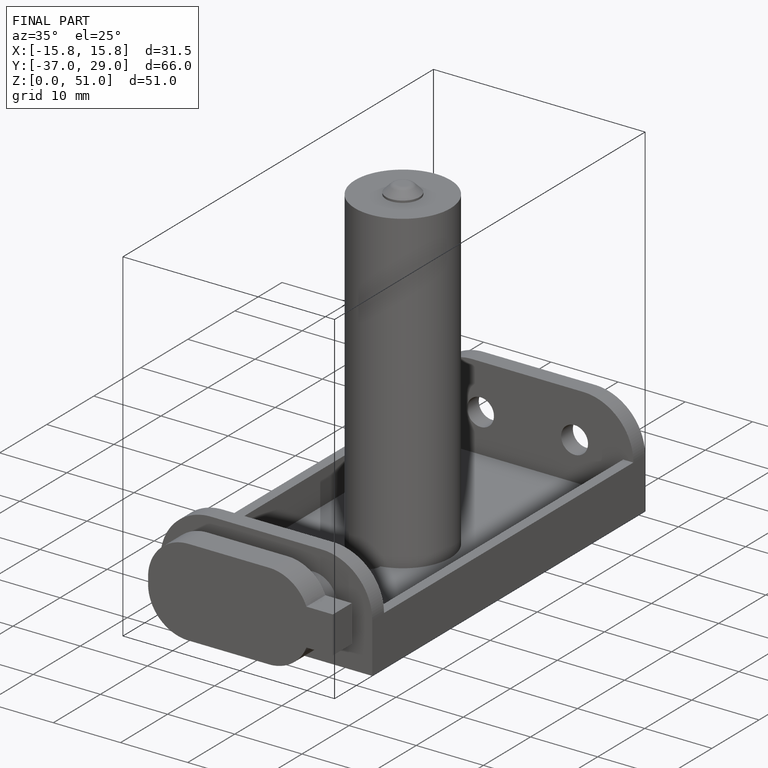
[diagram: finished part — iso view with bounding-box wireframe]
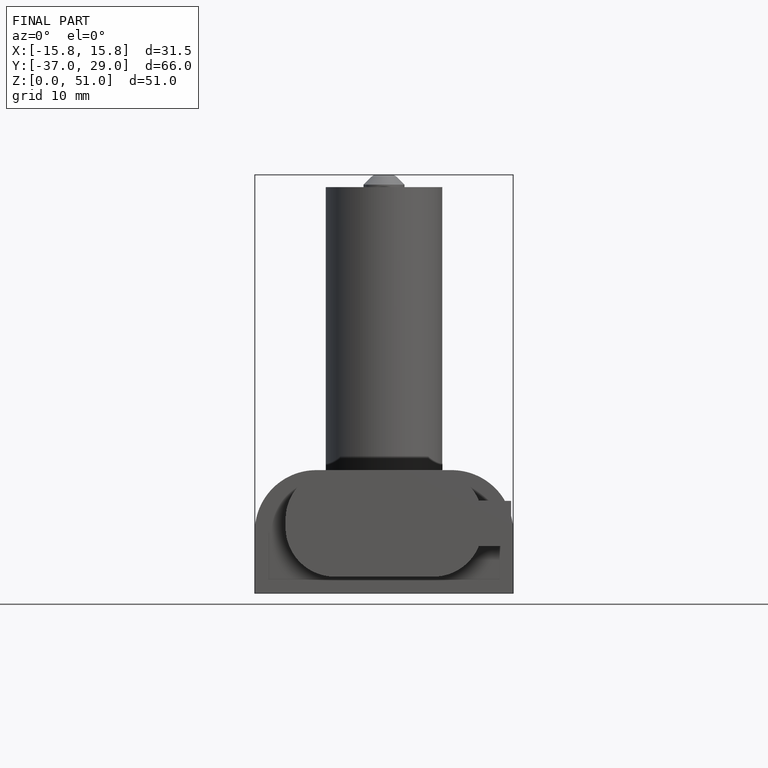
[diagram: finished part — front view with bounding-box wireframe]
